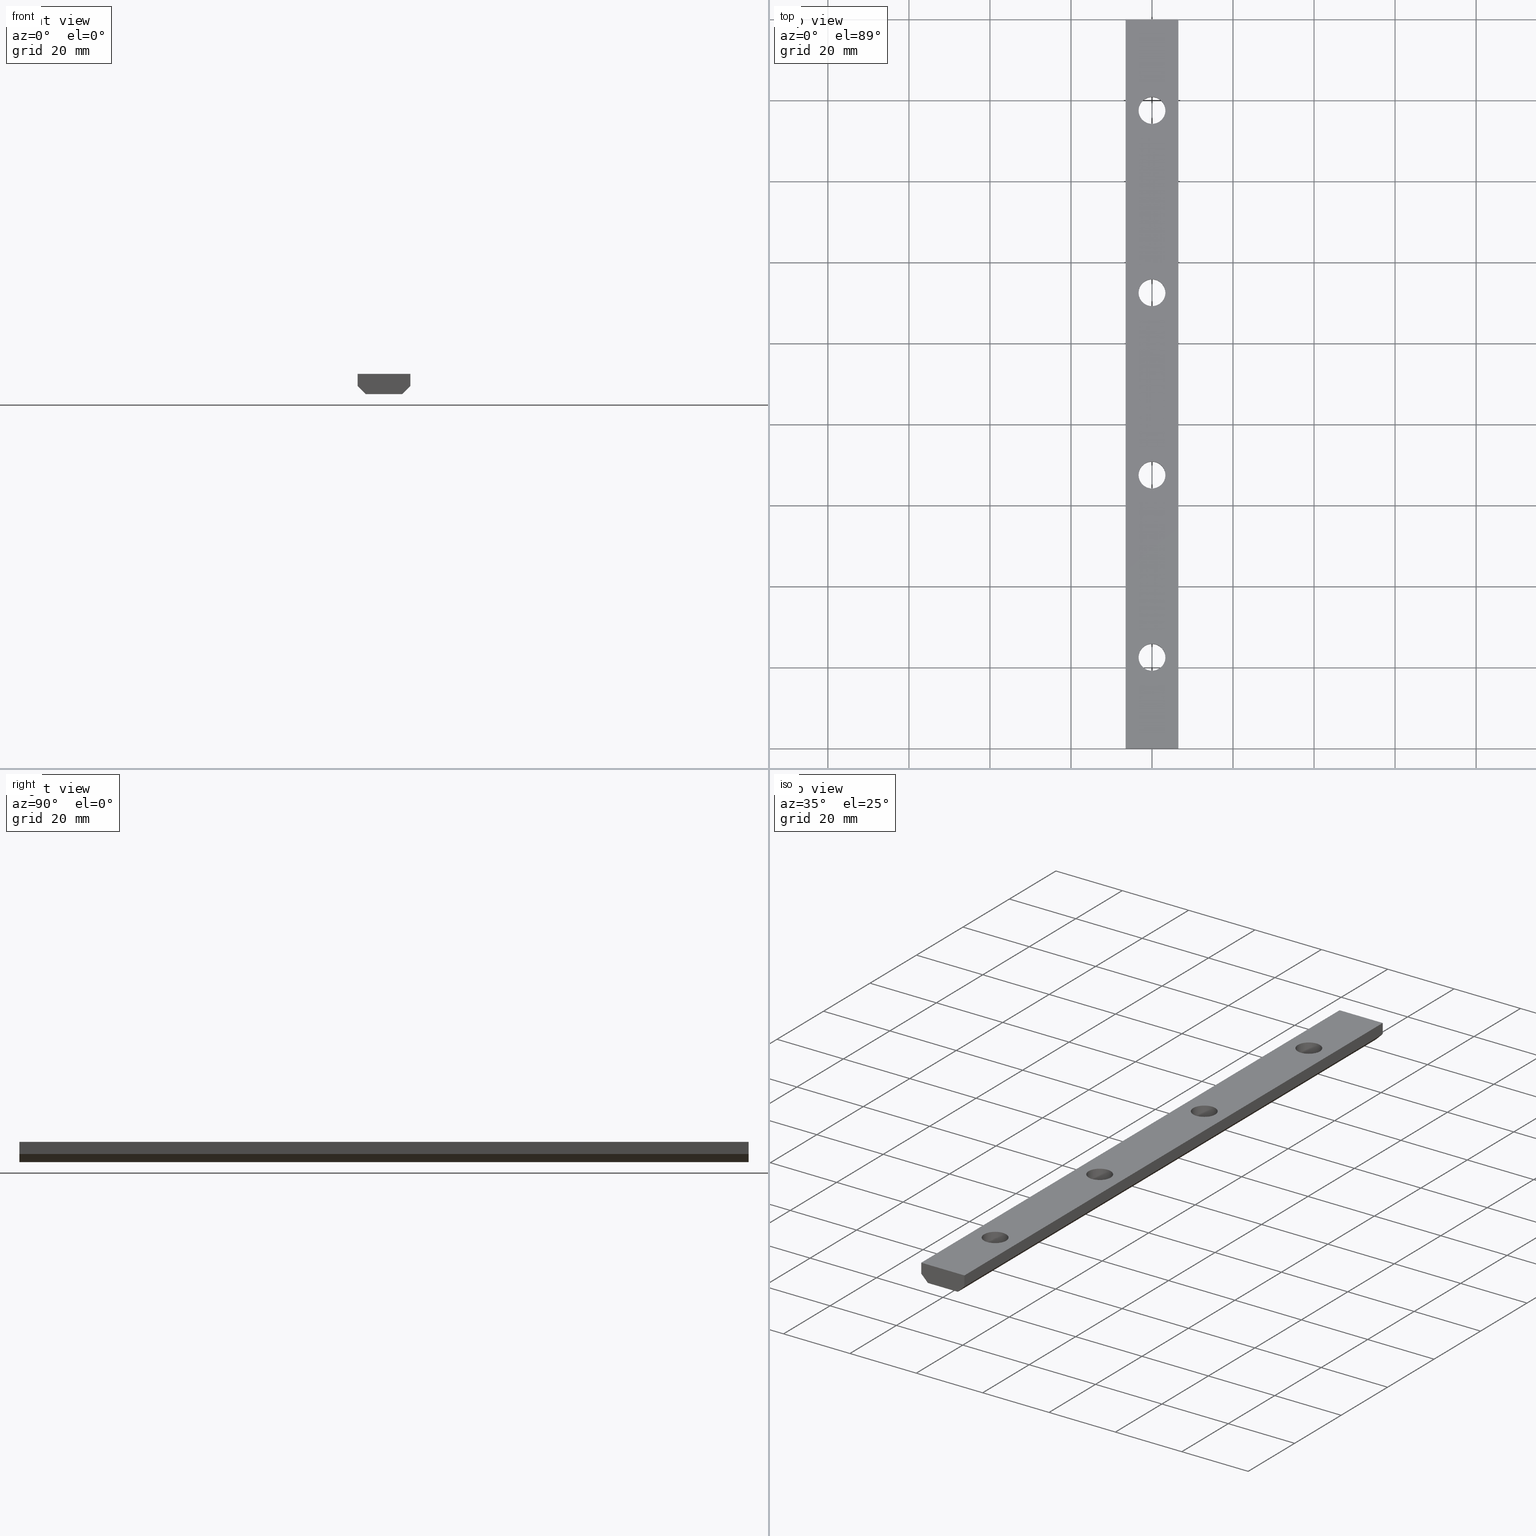
[diagram: canonical four-view strip — front | top / right | iso, engineering-drawing reading convention]
A machine part, canonical four-view strip (front | top / right | iso — engineering-drawing reading convention). The complete STEP part file that produces these views, byte-faithful:
ISO-10303-21;
HEADER;
/* Generated by software containing ST-Developer
 * from STEP Tools, Inc. (www.steptools.com) 
 */

FILE_DESCRIPTION(
/* description */ ('GIUNZ. LINEARE BOMBATA SERIE 45 L=180'),
/* implementation_level */ '2;1');

FILE_NAME(
/* name */ 
'Q:\\Catalogo\\2_Accessori Dierre\\Per Download Web e catalogo cartace
o\\CATALOGO ELEMENTI ASSEMBLAGGIO\\PAGINA 22\\CGIPR0000073.stp',
/* time_stamp */ '2018-06-19T10:31:31+02:00',
/* author */ ('fzagni'),
/* organization */ (''),
/* preprocessor_version */ 'ST-DEVELOPER v16.1',
/* originating_system */ 'Autodesk Inventor 2016',
/* authorisation */ '');

FILE_SCHEMA (('AUTOMOTIVE_DESIGN { 1 0 10303 214 3 1 1 }'));
ENDSEC;

DATA;
#10=MECHANICAL_DESIGN_GEOMETRIC_PRESENTATION_REPRESENTATION('',(#220,#219,
#222,#221,#223,#224,#225,#226,#229,#230,#231,#227,#228),#388);
#11=DIMENSIONAL_EXPONENTS(0.,0.,0.,0.,0.,0.,0.);
#12=(
CONVERSION_BASED_UNIT('degree',#13)
NAMED_UNIT(#11)
PLANE_ANGLE_UNIT()
);
#13=PLANE_ANGLE_MEASURE_WITH_UNIT(PLANE_ANGLE_MEASURE(0.01745329252),#391);
#14=SHAPE_REPRESENTATION_RELATIONSHIP('SRR','None',#394,#15);
#15=ADVANCED_BREP_SHAPE_REPRESENTATION('',(#16),#387);
#16=MANIFOLD_SOLID_BREP('1',#244);
#17=CYLINDRICAL_SURFACE('',#262,3.3235);
#18=CYLINDRICAL_SURFACE('',#263,3.3235);
#19=CYLINDRICAL_SURFACE('',#264,3.3235);
#20=CYLINDRICAL_SURFACE('',#265,3.3235);
#21=FACE_BOUND('',#58,.T.);
#22=FACE_BOUND('',#59,.T.);
#23=FACE_BOUND('',#60,.T.);
#24=FACE_BOUND('',#61,.T.);
#25=FACE_BOUND('',#63,.T.);
#26=FACE_BOUND('',#64,.T.);
#27=FACE_BOUND('',#65,.T.);
#28=FACE_BOUND('',#66,.T.);
#29=FACE_BOUND('',#70,.T.);
#30=FACE_BOUND('',#72,.T.);
#31=FACE_BOUND('',#74,.T.);
#32=FACE_BOUND('',#76,.T.);
#33=CIRCLE('',#251,3.3235);
#34=CIRCLE('',#252,3.3235);
#35=CIRCLE('',#253,3.3235);
#36=CIRCLE('',#254,3.3235);
#37=CIRCLE('',#256,3.3235);
#38=CIRCLE('',#257,3.3235);
#39=CIRCLE('',#258,3.3235);
#40=CIRCLE('',#259,3.3235);
#41=FACE_OUTER_BOUND('',#53,.T.);
#42=FACE_OUTER_BOUND('',#54,.T.);
#43=FACE_OUTER_BOUND('',#55,.T.);
#44=FACE_OUTER_BOUND('',#56,.T.);
#45=FACE_OUTER_BOUND('',#57,.T.);
#46=FACE_OUTER_BOUND('',#62,.T.);
#47=FACE_OUTER_BOUND('',#67,.T.);
#48=FACE_OUTER_BOUND('',#68,.T.);
#49=FACE_OUTER_BOUND('',#69,.T.);
#50=FACE_OUTER_BOUND('',#71,.T.);
#51=FACE_OUTER_BOUND('',#73,.T.);
#52=FACE_OUTER_BOUND('',#75,.T.);
#53=EDGE_LOOP('',(#159,#160,#161,#162));
#54=EDGE_LOOP('',(#163,#164,#165,#166));
#55=EDGE_LOOP('',(#167,#168,#169,#170,#171,#172));
#56=EDGE_LOOP('',(#173,#174,#175,#176));
#57=EDGE_LOOP('',(#177,#178,#179,#180));
#58=EDGE_LOOP('',(#181));
#59=EDGE_LOOP('',(#182));
#60=EDGE_LOOP('',(#183));
#61=EDGE_LOOP('',(#184));
#62=EDGE_LOOP('',(#185,#186,#187,#188));
#63=EDGE_LOOP('',(#189));
#64=EDGE_LOOP('',(#190));
#65=EDGE_LOOP('',(#191));
#66=EDGE_LOOP('',(#192));
#67=EDGE_LOOP('',(#193,#194,#195,#196,#197,#198));
#68=EDGE_LOOP('',(#199,#200,#201,#202));
#69=EDGE_LOOP('',(#203));
#70=EDGE_LOOP('',(#204));
#71=EDGE_LOOP('',(#205));
#72=EDGE_LOOP('',(#206));
#73=EDGE_LOOP('',(#207));
#74=EDGE_LOOP('',(#208));
#75=EDGE_LOOP('',(#209));
#76=EDGE_LOOP('',(#210));
#77=LINE('',#330,#95);
#78=LINE('',#332,#96);
#79=LINE('',#334,#97);
#80=LINE('',#335,#98);
#81=LINE('',#338,#99);
#82=LINE('',#340,#100);
#83=LINE('',#341,#101);
#84=LINE('',#344,#102);
#85=LINE('',#346,#103);
#86=LINE('',#348,#104);
#87=LINE('',#349,#105);
#88=LINE('',#352,#106);
#89=LINE('',#354,#107);
#90=LINE('',#355,#108);
#91=LINE('',#357,#109);
#92=LINE('',#368,#110);
#93=LINE('',#369,#111);
#94=LINE('',#379,#112);
#95=VECTOR('',#270,3.);
#96=VECTOR('',#271,180.);
#97=VECTOR('',#272,3.);
#98=VECTOR('',#273,180.);
#99=VECTOR('',#276,2.82842712474619);
#100=VECTOR('',#277,2.82842712474619);
#101=VECTOR('',#278,180.);
#102=VECTOR('',#281,9.);
#103=VECTOR('',#282,2.82842712474619);
#104=VECTOR('',#283,3.);
#105=VECTOR('',#284,13.);
#106=VECTOR('',#287,180.);
#107=VECTOR('',#288,3.);
#108=VECTOR('',#289,180.);
#109=VECTOR('',#292,13.);
#110=VECTOR('',#303,9.);
#111=VECTOR('',#304,180.);
#112=VECTOR('',#315,2.82842712474619);
#113=VERTEX_POINT('',#328);
#114=VERTEX_POINT('',#329);
#115=VERTEX_POINT('',#331);
#116=VERTEX_POINT('',#333);
#117=VERTEX_POINT('',#337);
#118=VERTEX_POINT('',#339);
#119=VERTEX_POINT('',#343);
#120=VERTEX_POINT('',#345);
#121=VERTEX_POINT('',#347);
#122=VERTEX_POINT('',#351);
#123=VERTEX_POINT('',#353);
#124=VERTEX_POINT('',#358);
#125=VERTEX_POINT('',#360);
#126=VERTEX_POINT('',#362);
#127=VERTEX_POINT('',#364);
#128=VERTEX_POINT('',#367);
#129=VERTEX_POINT('',#370);
#130=VERTEX_POINT('',#372);
#131=VERTEX_POINT('',#374);
#132=VERTEX_POINT('',#376);
#133=EDGE_CURVE('',#113,#114,#77,.T.);
#134=EDGE_CURVE('',#114,#115,#78,.T.);
#135=EDGE_CURVE('',#116,#115,#79,.T.);
#136=EDGE_CURVE('',#116,#113,#80,.T.);
#137=EDGE_CURVE('',#115,#117,#81,.F.);
#138=EDGE_CURVE('',#118,#114,#82,.F.);
#139=EDGE_CURVE('',#117,#118,#83,.T.);
#140=EDGE_CURVE('',#117,#119,#84,.T.);
#141=EDGE_CURVE('',#119,#120,#85,.F.);
#142=EDGE_CURVE('',#120,#121,#86,.T.);
#143=EDGE_CURVE('',#121,#116,#87,.T.);
#144=EDGE_CURVE('',#120,#122,#88,.T.);
#145=EDGE_CURVE('',#122,#123,#89,.T.);
#146=EDGE_CURVE('',#121,#123,#90,.T.);
#147=EDGE_CURVE('',#123,#113,#91,.T.);
#148=EDGE_CURVE('',#124,#124,#33,.T.);
#149=EDGE_CURVE('',#125,#125,#34,.T.);
#150=EDGE_CURVE('',#126,#126,#35,.T.);
#151=EDGE_CURVE('',#127,#127,#36,.T.);
#152=EDGE_CURVE('',#118,#128,#92,.T.);
#153=EDGE_CURVE('',#128,#119,#93,.T.);
#154=EDGE_CURVE('',#129,#129,#37,.T.);
#155=EDGE_CURVE('',#130,#130,#38,.T.);
#156=EDGE_CURVE('',#131,#131,#39,.T.);
#157=EDGE_CURVE('',#132,#132,#40,.T.);
#158=EDGE_CURVE('',#122,#128,#94,.F.);
#159=ORIENTED_EDGE('',*,*,#133,.T.);
#160=ORIENTED_EDGE('',*,*,#134,.T.);
#161=ORIENTED_EDGE('',*,*,#135,.F.);
#162=ORIENTED_EDGE('',*,*,#136,.T.);
#163=ORIENTED_EDGE('',*,*,#137,.F.);
#164=ORIENTED_EDGE('',*,*,#134,.F.);
#165=ORIENTED_EDGE('',*,*,#138,.F.);
#166=ORIENTED_EDGE('',*,*,#139,.F.);
#167=ORIENTED_EDGE('',*,*,#140,.T.);
#168=ORIENTED_EDGE('',*,*,#141,.T.);
#169=ORIENTED_EDGE('',*,*,#142,.T.);
#170=ORIENTED_EDGE('',*,*,#143,.T.);
#171=ORIENTED_EDGE('',*,*,#135,.T.);
#172=ORIENTED_EDGE('',*,*,#137,.T.);
#173=ORIENTED_EDGE('',*,*,#142,.F.);
#174=ORIENTED_EDGE('',*,*,#144,.T.);
#175=ORIENTED_EDGE('',*,*,#145,.T.);
#176=ORIENTED_EDGE('',*,*,#146,.F.);
#177=ORIENTED_EDGE('',*,*,#147,.T.);
#178=ORIENTED_EDGE('',*,*,#136,.F.);
#179=ORIENTED_EDGE('',*,*,#143,.F.);
#180=ORIENTED_EDGE('',*,*,#146,.T.);
#181=ORIENTED_EDGE('',*,*,#148,.T.);
#182=ORIENTED_EDGE('',*,*,#149,.T.);
#183=ORIENTED_EDGE('',*,*,#150,.T.);
#184=ORIENTED_EDGE('',*,*,#151,.T.);
#185=ORIENTED_EDGE('',*,*,#152,.T.);
#186=ORIENTED_EDGE('',*,*,#153,.T.);
#187=ORIENTED_EDGE('',*,*,#140,.F.);
#188=ORIENTED_EDGE('',*,*,#139,.T.);
#189=ORIENTED_EDGE('',*,*,#154,.T.);
#190=ORIENTED_EDGE('',*,*,#155,.T.);
#191=ORIENTED_EDGE('',*,*,#156,.T.);
#192=ORIENTED_EDGE('',*,*,#157,.T.);
#193=ORIENTED_EDGE('',*,*,#145,.F.);
#194=ORIENTED_EDGE('',*,*,#158,.T.);
#195=ORIENTED_EDGE('',*,*,#152,.F.);
#196=ORIENTED_EDGE('',*,*,#138,.T.);
#197=ORIENTED_EDGE('',*,*,#133,.F.);
#198=ORIENTED_EDGE('',*,*,#147,.F.);
#199=ORIENTED_EDGE('',*,*,#141,.F.);
#200=ORIENTED_EDGE('',*,*,#153,.F.);
#201=ORIENTED_EDGE('',*,*,#158,.F.);
#202=ORIENTED_EDGE('',*,*,#144,.F.);
#203=ORIENTED_EDGE('',*,*,#151,.F.);
#204=ORIENTED_EDGE('',*,*,#157,.F.);
#205=ORIENTED_EDGE('',*,*,#150,.F.);
#206=ORIENTED_EDGE('',*,*,#156,.F.);
#207=ORIENTED_EDGE('',*,*,#149,.F.);
#208=ORIENTED_EDGE('',*,*,#155,.F.);
#209=ORIENTED_EDGE('',*,*,#148,.F.);
#210=ORIENTED_EDGE('',*,*,#154,.F.);
#211=PLANE('',#246);
#212=PLANE('',#247);
#213=PLANE('',#248);
#214=PLANE('',#249);
#215=PLANE('',#250);
#216=PLANE('',#255);
#217=PLANE('',#260);
#218=PLANE('',#261);
#219=STYLED_ITEM('',(#404),#232);
#220=STYLED_ITEM('',(#404),#233);
#221=STYLED_ITEM('',(#404),#234);
#222=STYLED_ITEM('',(#404),#235);
#223=STYLED_ITEM('',(#404),#236);
#224=STYLED_ITEM('',(#404),#237);
#225=STYLED_ITEM('',(#404),#238);
#226=STYLED_ITEM('',(#404),#239);
#227=STYLED_ITEM('',(#405),#240);
#228=STYLED_ITEM('',(#405),#241);
#229=STYLED_ITEM('',(#405),#242);
#230=STYLED_ITEM('',(#405),#243);
#231=STYLED_ITEM('',(#403),#16);
#232=ADVANCED_FACE('',(#41),#211,.F.);
#233=ADVANCED_FACE('',(#42),#212,.F.);
#234=ADVANCED_FACE('',(#43),#213,.T.);
#235=ADVANCED_FACE('',(#44),#214,.F.);
#236=ADVANCED_FACE('',(#45,#21,#22,#23,#24),#215,.F.);
#237=ADVANCED_FACE('',(#46,#25,#26,#27,#28),#216,.F.);
#238=ADVANCED_FACE('',(#47),#217,.F.);
#239=ADVANCED_FACE('',(#48),#218,.F.);
#240=ADVANCED_FACE('',(#49,#29),#17,.F.);
#241=ADVANCED_FACE('',(#50,#30),#18,.F.);
#242=ADVANCED_FACE('',(#51,#31),#19,.F.);
#243=ADVANCED_FACE('',(#52,#32),#20,.F.);
#244=CLOSED_SHELL('',(#232,#233,#234,#235,#236,#237,#238,#239,#240,#241,
#242,#243));
#245=AXIS2_PLACEMENT_3D('placement',#326,#266,#267);
#246=AXIS2_PLACEMENT_3D('',#327,#268,#269);
#247=AXIS2_PLACEMENT_3D('',#336,#274,#275);
#248=AXIS2_PLACEMENT_3D('',#342,#279,#280);
#249=AXIS2_PLACEMENT_3D('',#350,#285,#286);
#250=AXIS2_PLACEMENT_3D('',#356,#290,#291);
#251=AXIS2_PLACEMENT_3D('',#359,#293,#294);
#252=AXIS2_PLACEMENT_3D('',#361,#295,#296);
#253=AXIS2_PLACEMENT_3D('',#363,#297,#298);
#254=AXIS2_PLACEMENT_3D('',#365,#299,#300);
#255=AXIS2_PLACEMENT_3D('',#366,#301,#302);
#256=AXIS2_PLACEMENT_3D('',#371,#305,#306);
#257=AXIS2_PLACEMENT_3D('',#373,#307,#308);
#258=AXIS2_PLACEMENT_3D('',#375,#309,#310);
#259=AXIS2_PLACEMENT_3D('',#377,#311,#312);
#260=AXIS2_PLACEMENT_3D('',#378,#313,#314);
#261=AXIS2_PLACEMENT_3D('',#380,#316,#317);
#262=AXIS2_PLACEMENT_3D('',#381,#318,#319);
#263=AXIS2_PLACEMENT_3D('',#382,#320,#321);
#264=AXIS2_PLACEMENT_3D('',#383,#322,#323);
#265=AXIS2_PLACEMENT_3D('',#384,#324,#325);
#266=DIRECTION('axis',(0.,0.,1.));
#267=DIRECTION('refdir',(1.,0.,0.));
#268=DIRECTION('center_axis',(-1.,0.,-1.7347234759768E-16));
#269=DIRECTION('ref_axis',(0.,0.,1.));
#270=DIRECTION('',(1.7347234759768E-16,0.,-1.));
#271=DIRECTION('',(0.,1.,0.));
#272=DIRECTION('',(1.7347234759768E-16,0.,-1.));
#273=DIRECTION('',(0.,-1.,0.));
#274=DIRECTION('center_axis',(-0.707106781186548,0.,0.707106781186548));
#275=DIRECTION('ref_axis',(0.,-1.,0.));
#276=DIRECTION('',(0.707106781186548,0.,0.707106781186548));
#277=DIRECTION('',(-0.707106781186548,0.,-0.707106781186548));
#278=DIRECTION('',(0.,-1.,0.));
#279=DIRECTION('center_axis',(0.,1.,0.));
#280=DIRECTION('ref_axis',(0.,0.,1.));
#281=DIRECTION('',(-1.,0.,-1.33440267382831E-16));
#282=DIRECTION('',(0.707106781186548,0.,-0.707106781186547));
#283=DIRECTION('',(-1.7347234759768E-16,0.,1.));
#284=DIRECTION('',(1.,0.,1.33440267382831E-16));
#285=DIRECTION('center_axis',(1.,0.,1.7347234759768E-16));
#286=DIRECTION('ref_axis',(0.,0.,-1.));
#287=DIRECTION('',(0.,-1.,0.));
#288=DIRECTION('',(-1.7347234759768E-16,0.,1.));
#289=DIRECTION('',(0.,-1.,0.));
#290=DIRECTION('center_axis',(1.33440267382831E-16,0.,-1.));
#291=DIRECTION('ref_axis',(-1.,0.,0.));
#292=DIRECTION('',(1.,0.,1.33440267382831E-16));
#293=DIRECTION('center_axis',(1.33440267382831E-16,0.,-1.));
#294=DIRECTION('ref_axis',(1.,0.,1.33440267382831E-16));
#295=DIRECTION('center_axis',(1.33440267382831E-16,0.,-1.));
#296=DIRECTION('ref_axis',(1.,0.,1.33440267382831E-16));
#297=DIRECTION('center_axis',(1.33440267382831E-16,0.,-1.));
#298=DIRECTION('ref_axis',(1.,0.,1.33440267382831E-16));
#299=DIRECTION('center_axis',(1.33440267382831E-16,0.,-1.));
#300=DIRECTION('ref_axis',(1.,0.,1.33440267382831E-16));
#301=DIRECTION('center_axis',(-1.33440267382831E-16,0.,1.));
#302=DIRECTION('ref_axis',(1.,0.,0.));
#303=DIRECTION('',(-1.,0.,-1.33440267382831E-16));
#304=DIRECTION('',(0.,1.,0.));
#305=DIRECTION('center_axis',(-1.33440267382831E-16,0.,1.));
#306=DIRECTION('ref_axis',(1.,0.,1.33440267382831E-16));
#307=DIRECTION('center_axis',(-1.33440267382831E-16,0.,1.));
#308=DIRECTION('ref_axis',(1.,0.,1.33440267382831E-16));
#309=DIRECTION('center_axis',(-1.33440267382831E-16,0.,1.));
#310=DIRECTION('ref_axis',(1.,0.,1.33440267382831E-16));
#311=DIRECTION('center_axis',(-1.33440267382831E-16,0.,1.));
#312=DIRECTION('ref_axis',(1.,0.,1.33440267382831E-16));
#313=DIRECTION('center_axis',(0.,1.,0.));
#314=DIRECTION('ref_axis',(0.,0.,1.));
#315=DIRECTION('',(-0.707106781186548,0.,0.707106781186547));
#316=DIRECTION('center_axis',(0.707106781186547,0.,0.707106781186548));
#317=DIRECTION('ref_axis',(0.,-1.,0.));
#318=DIRECTION('center_axis',(-1.33440267382831E-16,0.,1.));
#319=DIRECTION('ref_axis',(1.,0.,1.33440267382831E-16));
#320=DIRECTION('center_axis',(-1.33440267382831E-16,0.,1.));
#321=DIRECTION('ref_axis',(1.,0.,1.33440267382831E-16));
#322=DIRECTION('center_axis',(-1.33440267382831E-16,0.,1.));
#323=DIRECTION('ref_axis',(1.,0.,1.33440267382831E-16));
#324=DIRECTION('center_axis',(-1.33440267382831E-16,0.,1.));
#325=DIRECTION('ref_axis',(1.,0.,1.33440267382831E-16));
#326=CARTESIAN_POINT('',(0.,0.,0.));
#327=CARTESIAN_POINT('Origin',(6.5,180.,2.5));
#328=CARTESIAN_POINT('',(6.5,0.,2.5));
#329=CARTESIAN_POINT('',(6.5,0.,-0.5));
#330=CARTESIAN_POINT('',(6.5,0.,2.5));
#331=CARTESIAN_POINT('',(6.5,180.,-0.5));
#332=CARTESIAN_POINT('',(6.5,180.,-0.5));
#333=CARTESIAN_POINT('',(6.5,180.,2.5));
#334=CARTESIAN_POINT('',(6.5,180.,2.5));
#335=CARTESIAN_POINT('',(6.5,180.,2.5));
#336=CARTESIAN_POINT('Origin',(4.5,180.,-2.5));
#337=CARTESIAN_POINT('',(4.5,180.,-2.5));
#338=CARTESIAN_POINT('',(3.5,180.,-3.5));
#339=CARTESIAN_POINT('',(4.5,0.,-2.5));
#340=CARTESIAN_POINT('',(4.5,0.,-2.5));
#341=CARTESIAN_POINT('',(4.5,180.,-2.5));
#342=CARTESIAN_POINT('Origin',(0.,180.,0.));
#343=CARTESIAN_POINT('',(-4.5,180.,-2.5));
#344=CARTESIAN_POINT('',(6.5,180.,-2.5));
#345=CARTESIAN_POINT('',(-6.5,180.,-0.5));
#346=CARTESIAN_POINT('',(-3.5,180.,-3.5));
#347=CARTESIAN_POINT('',(-6.5,180.,2.5));
#348=CARTESIAN_POINT('',(-6.5,180.,-2.5));
#349=CARTESIAN_POINT('',(-6.5,180.,2.5));
#350=CARTESIAN_POINT('Origin',(-6.5,180.,-2.5));
#351=CARTESIAN_POINT('',(-6.5,0.,-0.5));
#352=CARTESIAN_POINT('',(-6.5,180.,-0.5));
#353=CARTESIAN_POINT('',(-6.5,0.,2.5));
#354=CARTESIAN_POINT('',(-6.5,0.,-2.5));
#355=CARTESIAN_POINT('',(-6.5,180.,2.5));
#356=CARTESIAN_POINT('Origin',(-6.5,180.,2.5));
#357=CARTESIAN_POINT('',(-6.5,0.,2.5));
#358=CARTESIAN_POINT('',(3.3235,112.5,2.5));
#359=CARTESIAN_POINT('Origin',(-8.67361737988404E-16,112.5,2.5));
#360=CARTESIAN_POINT('',(3.3235,67.5,2.5));
#361=CARTESIAN_POINT('Origin',(-8.67361737988404E-16,67.5,2.5));
#362=CARTESIAN_POINT('',(3.3235,157.5,2.5));
#363=CARTESIAN_POINT('Origin',(-8.67361737988404E-16,157.5,2.5));
#364=CARTESIAN_POINT('',(3.3235,22.5,2.5));
#365=CARTESIAN_POINT('Origin',(-8.67361737988404E-16,22.5,2.5));
#366=CARTESIAN_POINT('Origin',(6.5,180.,-2.5));
#367=CARTESIAN_POINT('',(-4.5,0.,-2.5));
#368=CARTESIAN_POINT('',(6.5,0.,-2.5));
#369=CARTESIAN_POINT('',(-4.5,180.,-2.5));
#370=CARTESIAN_POINT('',(3.3235,112.5,-2.5));
#371=CARTESIAN_POINT('Origin',(-2.00160401074247E-16,112.5,-2.5));
#372=CARTESIAN_POINT('',(3.3235,67.5,-2.5));
#373=CARTESIAN_POINT('Origin',(-2.00160401074247E-16,67.5,-2.5));
#374=CARTESIAN_POINT('',(3.3235,157.5,-2.5));
#375=CARTESIAN_POINT('Origin',(-2.00160401074247E-16,157.5,-2.5));
#376=CARTESIAN_POINT('',(3.3235,22.5,-2.5));
#377=CARTESIAN_POINT('Origin',(-2.00160401074247E-16,22.5,-2.5));
#378=CARTESIAN_POINT('Origin',(0.,0.,0.));
#379=CARTESIAN_POINT('',(-6.5,0.,-0.5));
#380=CARTESIAN_POINT('Origin',(-6.5,180.,-0.5));
#381=CARTESIAN_POINT('Origin',(-8.67361737988404E-16,22.5,2.5));
#382=CARTESIAN_POINT('Origin',(-8.67361737988404E-16,157.5,2.5));
#383=CARTESIAN_POINT('Origin',(-8.67361737988404E-16,67.5,2.5));
#384=CARTESIAN_POINT('Origin',(-8.67361737988404E-16,112.5,2.5));
#385=UNCERTAINTY_MEASURE_WITH_UNIT(LENGTH_MEASURE(0.01),#389,
'DISTANCE_ACCURACY_VALUE',
'Maximum model space distance between geometric entities at asserted c
onnectivities');
#386=UNCERTAINTY_MEASURE_WITH_UNIT(LENGTH_MEASURE(1.E-6),#389,
'DISTANCE_ACCURACY_VALUE',
'Maximum model space distance between geometric entities at asserted c
onnectivities');
#387=(
GEOMETRIC_REPRESENTATION_CONTEXT(3)
GLOBAL_UNCERTAINTY_ASSIGNED_CONTEXT((#385))
GLOBAL_UNIT_ASSIGNED_CONTEXT((#389,#391,#390))
REPRESENTATION_CONTEXT('','3D')
);
#388=(
GEOMETRIC_REPRESENTATION_CONTEXT(3)
GLOBAL_UNCERTAINTY_ASSIGNED_CONTEXT((#386))
GLOBAL_UNIT_ASSIGNED_CONTEXT((#389,#12,#390))
REPRESENTATION_CONTEXT('','3D')
);
#389=(
LENGTH_UNIT()
NAMED_UNIT(*)
SI_UNIT(.MILLI.,.METRE.)
);
#390=(
NAMED_UNIT(*)
SI_UNIT($,.STERADIAN.)
SOLID_ANGLE_UNIT()
);
#391=(
NAMED_UNIT(*)
PLANE_ANGLE_UNIT()
SI_UNIT($,.RADIAN.)
);
#392=SHAPE_DEFINITION_REPRESENTATION(#393,#394);
#393=PRODUCT_DEFINITION_SHAPE('',$,#396);
#394=SHAPE_REPRESENTATION('',(#245),#387);
#395=PRODUCT_DEFINITION_CONTEXT('part definition',#400,'design');
#396=PRODUCT_DEFINITION('DM70GI00003-A','DM70GI00003-A',#397,#395);
#397=PRODUCT_DEFINITION_FORMATION('','A',#402);
#398=PRODUCT_RELATED_PRODUCT_CATEGORY('DM70GI00003-A','DM70GI00003-A',(#402));
#399=APPLICATION_PROTOCOL_DEFINITION('international standard',
'automotive_design',2009,#400);
#400=APPLICATION_CONTEXT(
'Core Data for Automotive Mechanical Design Process');
#401=PRODUCT_CONTEXT('part definition',#400,'mechanical');
#402=PRODUCT('DM70GI00003-A','DM70GI00003-A',$,(#401));
#403=PRESENTATION_STYLE_ASSIGNMENT((#406));
#404=PRESENTATION_STYLE_ASSIGNMENT((#407));
#405=PRESENTATION_STYLE_ASSIGNMENT((#408));
#406=SURFACE_STYLE_USAGE(.BOTH.,#409);
#407=SURFACE_STYLE_USAGE(.BOTH.,#410);
#408=SURFACE_STYLE_USAGE(.BOTH.,#411);
#409=SURFACE_SIDE_STYLE('',(#412));
#410=SURFACE_SIDE_STYLE('',(#413));
#411=SURFACE_SIDE_STYLE('',(#414));
#412=SURFACE_STYLE_FILL_AREA(#415);
#413=SURFACE_STYLE_FILL_AREA(#416);
#414=SURFACE_STYLE_FILL_AREA(#417);
#415=FILL_AREA_STYLE('',(#418));
#416=FILL_AREA_STYLE('',(#419));
#417=FILL_AREA_STYLE('',(#420));
#418=FILL_AREA_STYLE_COLOUR('',#421);
#419=FILL_AREA_STYLE_COLOUR('',#422);
#420=FILL_AREA_STYLE_COLOUR('',#423);
#421=COLOUR_RGB('',0.63921568627451,0.63921568627451,0.662745098039216);
#422=COLOUR_RGB('',0.752941176470588,0.752941176470588,0.752941176470588);
#423=COLOUR_RGB('',0.396078431372549,0.941176470588235,0.450980392156863);
ENDSEC;
END-ISO-10303-21;
